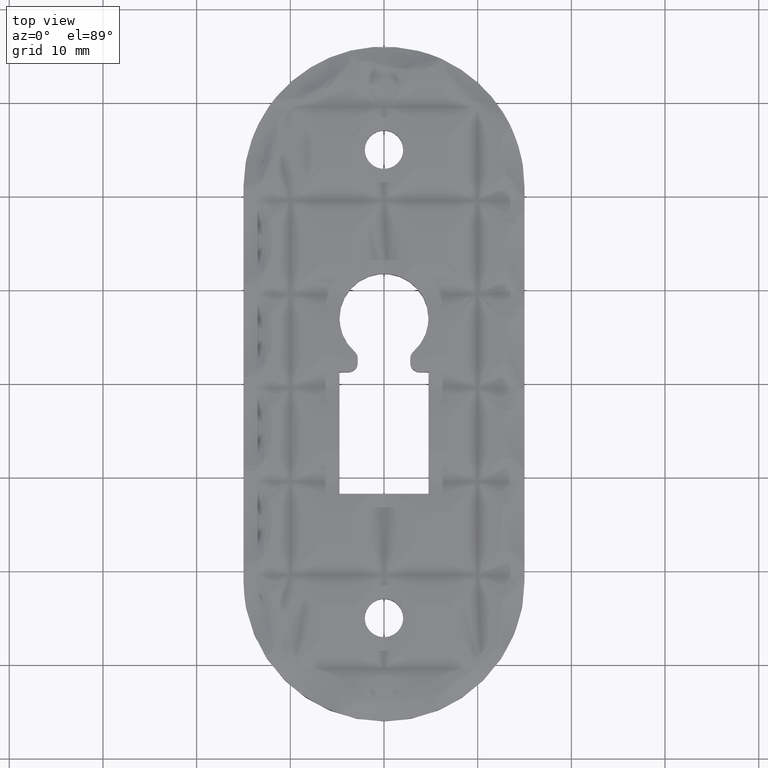
[diagram: clean part render]
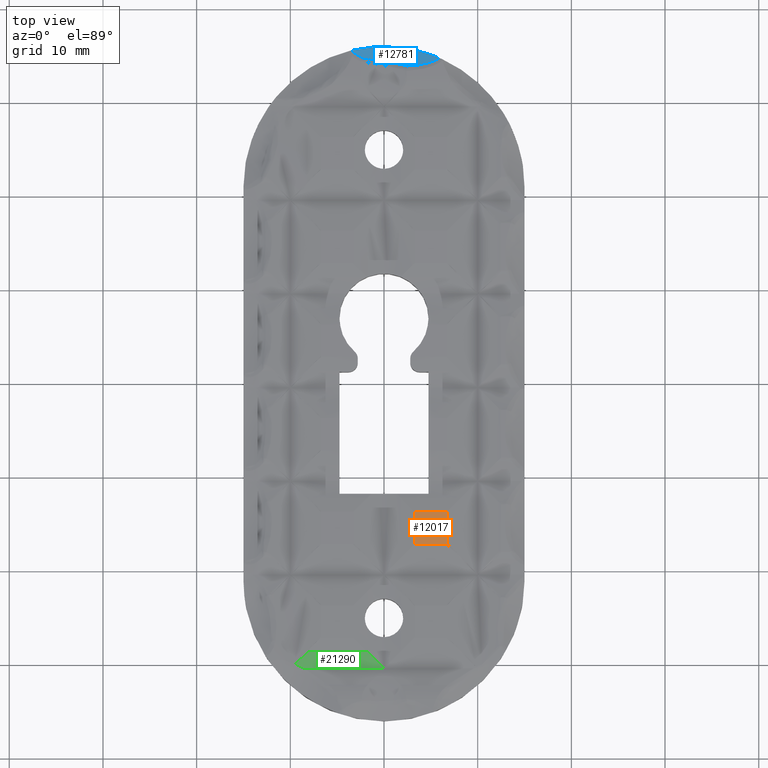
[diagram: same view with three faces highlighted in distinct colors, each labeled with its STEP entity id]
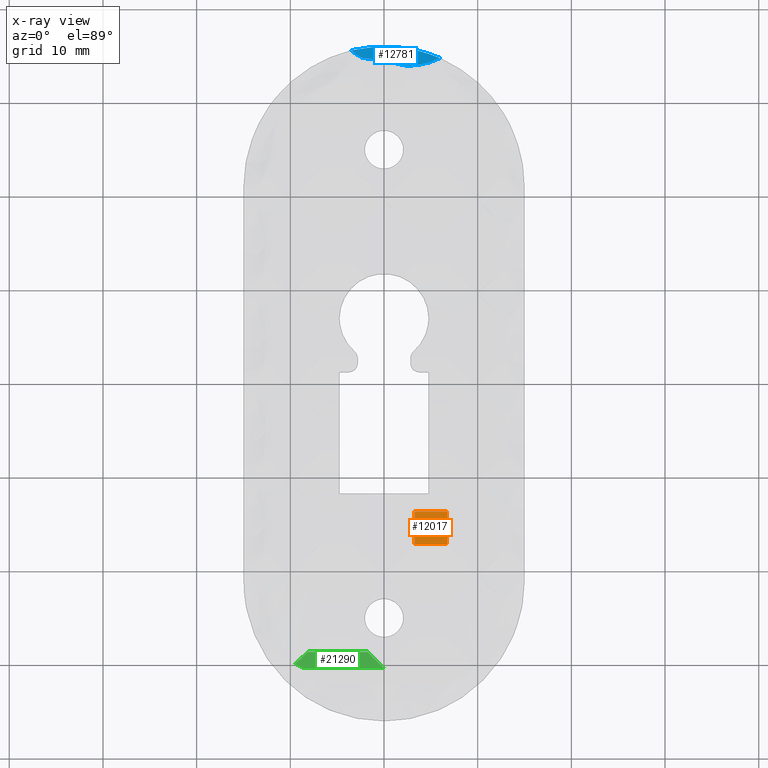
[diagram: x-ray of the same camera — body ghosted, the three highlighted faces saturated]
A machine part, top view with three faces highlighted in distinct colors.
The next image is the same camera in x-ray (body ghosted, the three faces saturated) — at least one of them is partly hidden behind the body in this view.
Their STEP definitions:

[orange] entity #12017 — the highlighted planar face has unit normal (0, 0, 1).
#558 = CARTESIAN_POINT ( 'NONE',  ( 3.273950213427202300, -13.65714629689749400, 3.499999999999999600 ) ) ;
#1255 = AXIS2_PLACEMENT_3D ( 'NONE', #20233, #9113, #22107 ) ;
#1290 = DIRECTION ( 'NONE',  ( -0.0000000000000000000, 1.000000000000000000, 0.0000000000000000000 ) ) ;
#2501 = ORIENTED_EDGE ( 'NONE', *, *, #19510, .T. ) ;
#3965 = EDGE_CURVE ( 'NONE', #10632, #14935, #21913, .T. ) ;
#5030 = DIRECTION ( 'NONE',  ( 1.000000000000000000, 0.0000000000000000000, 0.0000000000000000000 ) ) ;
#6602 = DIRECTION ( 'NONE',  ( 0.0000000000000000000, 1.000000000000000000, 0.0000000000000000000 ) ) ;
#7485 = CARTESIAN_POINT ( 'NONE',  ( 6.726049786572793300, -17.10924587004310700, 3.499999999999999600 ) ) ;
#7571 = ORIENTED_EDGE ( 'NONE', *, *, #21064, .F. ) ;
#8680 = VECTOR ( 'NONE', #1290, 1000.000000000000000 ) ;
#9113 = DIRECTION ( 'NONE',  ( 0.0000000000000000000, 0.0000000000000000000, 1.000000000000000000 ) ) ;
#9892 = CARTESIAN_POINT ( 'NONE',  ( -15.00000000000000000, -17.10924587004310700, 3.499999999999998700 ) ) ;
#10632 = VERTEX_POINT ( 'NONE', #558 ) ;
#11242 = EDGE_LOOP ( 'NONE', ( #2501, #22717, #18050, #7571 ) ) ;
#12017 = ADVANCED_FACE ( 'NONE', ( #17215 ), #14979, .T. ) ;
#12461 = CARTESIAN_POINT ( 'NONE',  ( 6.726049786572795100, 20.99999999999999600, 3.500000000000000000 ) ) ;
#12534 = CARTESIAN_POINT ( 'NONE',  ( 3.273950213427204000, -17.10924587004310700, 3.499999999999999600 ) ) ;
#13654 = DIRECTION ( 'NONE',  ( -1.000000000000000000, -0.0000000000000000000, -0.0000000000000000000 ) ) ;
#14433 = VECTOR ( 'NONE', #13654, 1000.000000000000000 ) ;
#14668 = CARTESIAN_POINT ( 'NONE',  ( 6.726049786572796000, -13.65714629689749400, 3.499999999999998700 ) ) ;
#14935 = VERTEX_POINT ( 'NONE', #14668 ) ;
#14979 = PLANE ( 'NONE',  #1255 ) ;
#14989 = LINE ( 'NONE', #9892, #14433 ) ;
#15405 = LINE ( 'NONE', #19585, #24224 ) ;
#15643 = EDGE_CURVE ( 'NONE', #15931, #10632, #15405, .T. ) ;
#15931 = VERTEX_POINT ( 'NONE', #12534 ) ;
#16976 = VECTOR ( 'NONE', #5030, 1000.000000000000000 ) ;
#17215 = FACE_OUTER_BOUND ( 'NONE', #11242, .T. ) ;
#18050 = ORIENTED_EDGE ( 'NONE', *, *, #15643, .F. ) ;
#18390 = VERTEX_POINT ( 'NONE', #7485 ) ;
#19510 = EDGE_CURVE ( 'NONE', #18390, #14935, #22887, .T. ) ;
#19585 = CARTESIAN_POINT ( 'NONE',  ( 3.273950213427204500, -39.76570081116073400, 3.500000000000001300 ) ) ;
#20233 = CARTESIAN_POINT ( 'NONE',  ( -2.507294680206831200E-015, 20.99999999999999600, 3.500000000000000000 ) ) ;
#21056 = CARTESIAN_POINT ( 'NONE',  ( -15.00000000000000000, -13.65714629689749200, 3.499999999999998700 ) ) ;
#21064 = EDGE_CURVE ( 'NONE', #18390, #15931, #14989, .T. ) ;
#21913 = LINE ( 'NONE', #21056, #16976 ) ;
#22107 = DIRECTION ( 'NONE',  ( 1.000000000000000000, 0.0000000000000000000, -0.0000000000000000000 ) ) ;
#22717 = ORIENTED_EDGE ( 'NONE', *, *, #3965, .F. ) ;
#22887 = LINE ( 'NONE', #12461, #8680 ) ;
#24224 = VECTOR ( 'NONE', #6602, 1000.000000000000000 ) ;

[blue] entity #12781 — the highlighted face is a freeform B-spline surface patch.
#237 = B_SPLINE_CURVE_WITH_KNOTS ( 'NONE', 3,
 ( #6748, #8706, #16150, #5052, #18034, #6916, #19895, #8787, #21758, #10609, #23674, #12519, #1345, #14364 ),
 .UNSPECIFIED., .F., .F.,
 ( 4, 2, 2, 2, 2, 2, 4 ),
 ( 0.0000000000000000000, 0.002442142642680621800, 0.003663213964020931900, 0.004884285285361242800, 0.006105356606701553700, 0.007326427928041863800, 0.009768570570722485600 ),
 .UNSPECIFIED. ) ;
#1151 = CARTESIAN_POINT ( 'NONE',  ( -3.629224825306974100, 34.62846065349990700, 3.857507811455631600 ) ) ;
#1345 = CARTESIAN_POINT ( 'NONE',  ( 5.251241240920664100, 35.07256070355536800, 3.167613495433702700 ) ) ;
#2080 = CARTESIAN_POINT ( 'NONE',  ( 0.8992635149472113500, 34.29739940108862600, 3.143696488535563800 ) ) ;
#3055 = CARTESIAN_POINT ( 'NONE',  ( -0.4058752392618401000, 35.36039922619365700, 2.553402850239677100 ) ) ;
#3304 = CARTESIAN_POINT ( 'NONE',  ( 4.873255663951959500, 34.29405637789992100, 3.391450537217667100 ) ) ;
#3477 = VERTEX_POINT ( 'NONE', #5221 ) ;
#3971 = CARTESIAN_POINT ( 'NONE',  ( -1.484667140064020600, 34.71441175331521800, 3.236510740160642600 ) ) ;
#4771 = B_SPLINE_CURVE_WITH_KNOTS ( 'NONE', 3,
 ( #10658, #8829, #14412, #3304, #16284, #5177, #18161, #7042 ),
 .UNSPECIFIED., .F., .F.,
 ( 4, 2, 2, 4 ),
 ( 0.0000000000000000000, 0.2499999999999995600, 0.4999999999999991100, 1.000000000000000000 ),
 .UNSPECIFIED. ) ;
#4946 = CARTESIAN_POINT ( 'NONE',  ( -0.4929855224810647000, 33.99190439850592300, 3.163002054591443900 ) ) ;
#4953 = VERTEX_POINT ( 'NONE', #21133 ) ;
#5052 = CARTESIAN_POINT ( 'NONE',  ( -0.7503163426048847800, 35.98667021478825500, 2.866128165434772300 ) ) ;
#5099 = CARTESIAN_POINT ( 'NONE',  ( -2.748204369019316300, 35.00664982505582400, 3.409822822712734500 ) ) ;
#5177 = CARTESIAN_POINT ( 'NONE',  ( 3.694959263101862000, 34.02467392140967900, 3.362073105714852100 ) ) ;
#5221 = CARTESIAN_POINT ( 'NONE',  ( -3.512514799668328400, 35.58294186459787100, 3.444459473309671600 ) ) ;
#6748 = CARTESIAN_POINT ( 'NONE',  ( -3.512514799668328400, 35.58294186459787100, 3.444459473309671600 ) ) ;
#6803 = CARTESIAN_POINT ( 'NONE',  ( 2.861835675719110600, 35.14808925277330300, 2.529968124088012500 ) ) ;
#6916 = CARTESIAN_POINT ( 'NONE',  ( 0.4791434672264966400, 35.99796535464208300, 2.768009124618971800 ) ) ;
#6956 = CARTESIAN_POINT ( 'NONE',  ( -3.356059093399856400, 35.41739247666215800, 3.436267356606767600 ) ) ;
#7042 = CARTESIAN_POINT ( 'NONE',  ( 2.467784569839676300, 33.93415268429136200, 3.347195531316297800 ) ) ;
#7575 = CARTESIAN_POINT ( 'NONE',  ( 2.467784569839676300, 33.93415268429136200, 3.347195531316297800 ) ) ;
#8037 = ORIENTED_EDGE ( 'NONE', *, *, #23100, .F. ) ;
#8681 = CARTESIAN_POINT ( 'NONE',  ( 2.774208135340167300, 33.77146836095743500, 3.143187102608317100 ) ) ;
#8706 = CARTESIAN_POINT ( 'NONE',  ( -2.747300252893790900, 35.76725655574429700, 3.194123479318220500 ) ) ;
#8787 = CARTESIAN_POINT ( 'NONE',  ( 1.699397389336468000, 35.90899473556839900, 2.748103743465630800 ) ) ;
#8829 = CARTESIAN_POINT ( 'NONE',  ( 5.721044763915579700, 34.61151624309368900, 3.420896182392463700 ) ) ;
#9407 = EDGE_CURVE ( 'NONE', #21664, #17369, #4771, .T. ) ;
#9484 = CARTESIAN_POINT ( 'NONE',  ( 2.467784569839676300, 33.93415268429136200, 3.347195531316297800 ) ) ;
#10419 = ORIENTED_EDGE ( 'NONE', *, *, #16092, .F. ) ;
#10494 = CARTESIAN_POINT ( 'NONE',  ( 6.046185855984061800, 35.08799060469570500, 3.305886668888271100 ) ) ;
#10609 = CARTESIAN_POINT ( 'NONE',  ( 2.906202934421420600, 35.72140704232703700, 2.805929506683086000 ) ) ;
#10658 = CARTESIAN_POINT ( 'NONE',  ( 5.969233181578076100, 34.76110729136889400, 3.431565772148067700 ) ) ;
#10821 = ORIENTED_EDGE ( 'NONE', *, *, #19185, .F. ) ;
#11951 = FACE_OUTER_BOUND ( 'NONE', #12523, .T. ) ;
#12311 = CARTESIAN_POINT ( 'NONE',  ( -3.596931599964609200, 35.13578436107137300, 3.538344442920761800 ) ) ;
#12404 = CARTESIAN_POINT ( 'NONE',  ( 5.975684584547135400, 33.98042187984108200, 3.799255733773296800 ) ) ;
#12519 = CARTESIAN_POINT ( 'NONE',  ( 4.493512960761324700, 35.33440368652561900, 3.003450998956953100 ) ) ;
#12523 = EDGE_LOOP ( 'NONE', ( #14256, #8037, #10821, #10419 ) ) ;
#12781 = ADVANCED_FACE ( 'NONE', ( #11951 ), #23255, .F. ) ;
#14087 = CARTESIAN_POINT ( 'NONE',  ( -3.560244188604634100, 35.71214034146729000, 3.374780173622111200 ) ) ;
#14171 = CARTESIAN_POINT ( 'NONE',  ( -0.3577251054221876600, 36.11683356065925200, 2.559967649569286200 ) ) ;
#14256 = ORIENTED_EDGE ( 'NONE', *, *, #9407, .F. ) ;
#14364 = CARTESIAN_POINT ( 'NONE',  ( 5.969233181578076100, 34.76110729136889400, 3.431565772148067700 ) ) ;
#14412 = CARTESIAN_POINT ( 'NONE',  ( 5.443872094268207300, 34.49316015019210400, 3.410258811236464500 ) ) ;
#15068 = CARTESIAN_POINT ( 'NONE',  ( -0.6888085946313491400, 34.59894784881237200, 3.157240712670009900 ) ) ;
#16033 = CARTESIAN_POINT ( 'NONE',  ( -0.4522049188201501300, 34.63256406711809600, 2.759955449697884400 ) ) ;
#16092 = EDGE_CURVE ( 'NONE', #17369, #4953, #23551, .T. ) ;
#16110 = CARTESIAN_POINT ( 'NONE',  ( -2.285070326656467400, 34.78074839918443200, 3.393914705676399600 ) ) ;
#16150 = CARTESIAN_POINT ( 'NONE',  ( -1.958887627078081500, 35.89348160195215300, 3.031703788604220900 ) ) ;
#16284 = CARTESIAN_POINT ( 'NONE',  ( 4.581675364116472700, 34.21599363055513300, 3.383235708882549100 ) ) ;
#16551 = CARTESIAN_POINT ( 'NONE',  ( 5.969233181578076100, 34.76110729136889400, 3.431565772148067700 ) ) ;
#16966 = CARTESIAN_POINT ( 'NONE',  ( -2.285070326656467400, 34.78074839918443200, 3.393914705676399600 ) ) ;
#17369 = VERTEX_POINT ( 'NONE', #7575 ) ;
#17916 = CARTESIAN_POINT ( 'NONE',  ( 2.910271723007206400, 35.90901526216982400, 2.536571904917048300 ) ) ;
#17992 = CARTESIAN_POINT ( 'NONE',  ( -2.521331587645002900, 34.88797805413356900, 3.401480128037058600 ) ) ;
#18034 = CARTESIAN_POINT ( 'NONE',  ( -0.3419283086998682900, 36.00172084372122300, 2.824725814388448600 ) ) ;
#18075 = CARTESIAN_POINT ( 'NONE',  ( -3.164133570452155400, 35.27165013321197100, 3.427169745758126500 ) ) ;
#18161 = CARTESIAN_POINT ( 'NONE',  ( 3.087217349222140900, 33.95591482832367100, 3.352543738117129000 ) ) ;
#19185 = EDGE_CURVE ( 'NONE', #4953, #3477, #20570, .T. ) ;
#19785 = CARTESIAN_POINT ( 'NONE',  ( 2.815230892492514700, 34.41593223945489700, 2.737747224103682000 ) ) ;
#19895 = CARTESIAN_POINT ( 'NONE',  ( 0.8873856886948322500, 35.97927308488598200, 2.752936130467974300 ) ) ;
#19930 = CARTESIAN_POINT ( 'NONE',  ( -3.512514799668328400, 35.58294186459787100, 3.444459473309671600 ) ) ;
#20570 = B_SPLINE_CURVE_WITH_KNOTS ( 'NONE', 3,
 ( #16110, #17992, #5099, #18075, #6956, #19930 ),
 .UNSPECIFIED., .F., .F.,
 ( 4, 2, 4 ),
 ( 0.0000000000000000000, 0.5107359930522787900, 1.000000000000000000 ),
 .UNSPECIFIED. ) ;
#20614 = CARTESIAN_POINT ( 'NONE',  ( 1.694671572592898000, 34.11369247106191700, 3.211051807679526200 ) ) ;
#21133 = CARTESIAN_POINT ( 'NONE',  ( -2.285070326656467400, 34.78074839918443200, 3.393914705676399600 ) ) ;
#21637 = CARTESIAN_POINT ( 'NONE',  ( 6.085155372901033000, 35.70019826110018400, 3.311199780984357900 ) ) ;
#21664 = VERTEX_POINT ( 'NONE', #16551 ) ;
#21758 = CARTESIAN_POINT ( 'NONE',  ( 2.103166617051668300, 35.85740660353734900, 2.758344623456078900 ) ) ;
#23100 = EDGE_CURVE ( 'NONE', #3477, #21664, #237, .T. ) ;
#23255 =( BOUNDED_SURFACE ( )  B_SPLINE_SURFACE ( 3, 3, ( 
 ( #23470, #14087, #12311, #1151 ),
 ( #14171, #3055, #16033, #4946 ),
 ( #17916, #6803, #19785, #8681 ),
 ( #21637, #10494, #23559, #12404 ) ),
 .UNSPECIFIED., .F., .F., .T. ) 
 B_SPLINE_SURFACE_WITH_KNOTS ( ( 4, 4 ),
 ( 4, 4 ),
 ( 0.0000000000000000000, 1.000000000000000000 ),
 ( 0.0000000000000000000, 1.000000000000000000 ),
 .UNSPECIFIED. ) 
 GEOMETRIC_REPRESENTATION_ITEM ( )  RATIONAL_B_SPLINE_SURFACE ( (
 ( 1.000000000000000000, 0.9731732685426104400, 0.9731732685426104400, 1.000000000000000000),
 ( 0.9799347101103347300, 0.9536462647964298900, 0.9536462647964298900, 0.9799347101103347300),
 ( 0.9799347101103347300, 0.9536462647964298900, 0.9536462647964298900, 0.9799347101103347300),
 ( 1.000000000000000000, 0.9731732685426104400, 0.9731732685426104400, 1.000000000000000000) ) ) 
 REPRESENTATION_ITEM ( '' )  SURFACE ( )  );
#23470 = CARTESIAN_POINT ( 'NONE',  ( -3.522115201224311300, 36.31114335335777100, 3.379978687745179000 ) ) ;
#23551 = B_SPLINE_CURVE_WITH_KNOTS ( 'NONE', 3,
 ( #9484, #20614, #2080, #15068, #3971, #16966 ),
 .UNSPECIFIED., .F., .F.,
 ( 4, 2, 4 ),
 ( 0.0000000000000000000, 0.5000000000000000000, 1.000000000000000000 ),
 .UNSPECIFIED. ) ;
#23559 = CARTESIAN_POINT ( 'NONE',  ( 6.008689693723789900, 34.49892921934598200, 3.473056609591576900 ) ) ;
#23674 = CARTESIAN_POINT ( 'NONE',  ( 3.306550263844890000, 35.63671487379835400, 2.843380970399760300 ) ) ;

[green] entity #21290 — the highlighted cylindrical surface (partial cylindrical patch) has radius 11.5625 mm, axis along (1, 0, 0).
#8 =( BOUNDED_CURVE ( )  B_SPLINE_CURVE ( 3, ( #22468, #11297, #3953, #16946 ),
 .UNSPECIFIED., .F., .T. ) 
 B_SPLINE_CURVE_WITH_KNOTS ( ( 4, 4 ),
 ( 1.570796326794896600, 1.723221237382203100 ),
 .UNSPECIFIED. ) 
 CURVE ( )  GEOMETRIC_REPRESENTATION_ITEM ( )  RATIONAL_B_SPLINE_CURVE ( ( 1.000000000000000000, 0.9980648241711250800, 0.9980648241711250800, 1.000000000000000000 ) ) 
 REPRESENTATION_ITEM ( '' )  );
#240 = DIRECTION ( 'NONE',  ( 1.000000000000000000, 0.0000000000000000000, 0.0000000000000000000 ) ) ;
#2431 = CARTESIAN_POINT ( 'NONE',  ( -8.560061608470027400, -30.38319600954118400, 3.250000022039143000 ) ) ;
#3043 = ORIENTED_EDGE ( 'NONE', *, *, #20151, .T. ) ;
#3494 = CARTESIAN_POINT ( 'NONE',  ( -9.027116316650985800, -29.48775587740485800, 3.276586452666256900 ) ) ;
#3601 = VECTOR ( 'NONE', #17631, 1000.000000000000000 ) ;
#3655 = CARTESIAN_POINT ( 'NONE',  ( 1.786030895490775100E-016, -30.38319608347029500, 3.250000000000002700 ) ) ;
#3953 = CARTESIAN_POINT ( 'NONE',  ( -1.174373920072589800, -29.20882216339770200, 3.294772633255837100 ) ) ;
#4339 = CARTESIAN_POINT ( 'NONE',  ( -9.174783700278759100, -30.06097413839035000, 3.253637679474754100 ) ) ;
#4648 = CARTESIAN_POINT ( 'NONE',  ( -15.00000000000000000, -30.38319608347029500, 3.250000000000002700 ) ) ;
#4932 = ORIENTED_EDGE ( 'NONE', *, *, #19657, .F. ) ;
#5348 = EDGE_CURVE ( 'NONE', #19694, #14968, #17819, .T. ) ;
#5995 = CYLINDRICAL_SURFACE ( 'NONE', #21746, 11.56249999999999600 ) ;
#6328 = VECTOR ( 'NONE', #18764, 1000.000000000000000 ) ;
#7808 = CARTESIAN_POINT ( 'NONE',  ( -8.560061608470027400, -30.38319600954118400, 3.250000022039143000 ) ) ;
#8472 = EDGE_CURVE ( 'NONE', #14498, #20843, #13090, .T. ) ;
#9085 = CARTESIAN_POINT ( 'NONE',  ( -8.092568136525027700, -28.62759959221223100, 3.384057971014495300 ) ) ;
#11209 =( BOUNDED_CURVE ( )  B_SPLINE_CURVE ( 3, ( #2431, #11677, #4339, #17324 ),
 .UNSPECIFIED., .F., .T. ) 
 B_SPLINE_CURVE_WITH_KNOTS ( ( 4, 4 ),
 ( 0.0000000000000000000, 1.000000000000000000 ),
 .UNSPECIFIED. ) 
 CURVE ( )  GEOMETRIC_REPRESENTATION_ITEM ( )  RATIONAL_B_SPLINE_CURVE ( ( 0.9999999427053810600, 0.9999999475965120100, 0.9999999525094462900, 0.9999999574840257000 ) ) 
 REPRESENTATION_ITEM ( '' )  );
#11297 = CARTESIAN_POINT ( 'NONE',  ( -0.5880404312580234100, -29.79515565221226900, 3.250000000000002700 ) ) ;
#11677 = CARTESIAN_POINT ( 'NONE',  ( -8.863642672239290500, -30.21706171429820000, 3.250002266913585300 ) ) ;
#13090 = B_SPLINE_CURVE_WITH_KNOTS ( 'NONE', 3,
 ( #16463, #3494, #20200, #9085 ),
 .UNSPECIFIED., .F., .F.,
 ( 4, 4 ),
 ( 0.0000000000000000000, 1.000000000000000000 ),
 .UNSPECIFIED. ) ;
#13335 = DIRECTION ( 'NONE',  ( 0.0000000000000000000, 0.0000000000000000000, -1.000000000000000000 ) ) ;
#14070 = CARTESIAN_POINT ( 'NONE',  ( -8.092568136525027700, -28.62759959221223100, 3.384057971014495300 ) ) ;
#14498 = VERTEX_POINT ( 'NONE', #17735 ) ;
#14968 = VERTEX_POINT ( 'NONE', #3655 ) ;
#15577 = ORIENTED_EDGE ( 'NONE', *, *, #15618, .F. ) ;
#15618 = EDGE_CURVE ( 'NONE', #19694, #14498, #11209, .T. ) ;
#15868 = FACE_OUTER_BOUND ( 'NONE', #17041, .T. ) ;
#16463 = CARTESIAN_POINT ( 'NONE',  ( -9.497463238038978500, -29.92066227566189700, 3.259255056407984100 ) ) ;
#16904 = CARTESIAN_POINT ( 'NONE',  ( -15.00000000000000000, -28.62759959221223500, 3.384057971014495800 ) ) ;
#16946 = CARTESIAN_POINT ( 'NONE',  ( -1.755596491258059900, -28.62759959221224200, 3.384057971014491400 ) ) ;
#17041 = EDGE_LOOP ( 'NONE', ( #15577, #21132, #3043, #4932, #24027 ) ) ;
#17324 = CARTESIAN_POINT ( 'NONE',  ( -9.497463238038978500, -29.92066227566189700, 3.259255056407984100 ) ) ;
#17427 = CARTESIAN_POINT ( 'NONE',  ( -1.755596491258059900, -28.62759959221224200, 3.384057971014491400 ) ) ;
#17631 = DIRECTION ( 'NONE',  ( 1.000000000000000000, 0.0000000000000000000, 0.0000000000000000000 ) ) ;
#17735 = CARTESIAN_POINT ( 'NONE',  ( -9.497463238038978500, -29.92066227566189700, 3.259255056407984100 ) ) ;
#17819 = LINE ( 'NONE', #4648, #3601 ) ;
#18764 = DIRECTION ( 'NONE',  ( 1.000000000000000000, 0.0000000000000000000, 0.0000000000000000000 ) ) ;
#19059 = VERTEX_POINT ( 'NONE', #17427 ) ;
#19657 = EDGE_CURVE ( 'NONE', #20843, #19059, #21142, .T. ) ;
#19694 = VERTEX_POINT ( 'NONE', #7808 ) ;
#20151 = EDGE_CURVE ( 'NONE', #14968, #19059, #8, .T. ) ;
#20200 = CARTESIAN_POINT ( 'NONE',  ( -8.557833545201237500, -29.05582894845770900, 3.318274905101269200 ) ) ;
#20843 = VERTEX_POINT ( 'NONE', #14070 ) ;
#21132 = ORIENTED_EDGE ( 'NONE', *, *, #5348, .T. ) ;
#21142 = LINE ( 'NONE', #16904, #6328 ) ;
#21290 = ADVANCED_FACE ( 'NONE', ( #15868 ), #5995, .F. ) ;
#21746 = AXIS2_PLACEMENT_3D ( 'NONE', #22571, #240, #13335 ) ;
#22468 = CARTESIAN_POINT ( 'NONE',  ( 1.786030895490775100E-016, -30.38319608347029500, 3.250000000000002700 ) ) ;
#22571 = CARTESIAN_POINT ( 'NONE',  ( -15.00000000000000000, -30.38319608347029500, 14.81250000000000000 ) ) ;
#24027 = ORIENTED_EDGE ( 'NONE', *, *, #8472, .F. ) ;